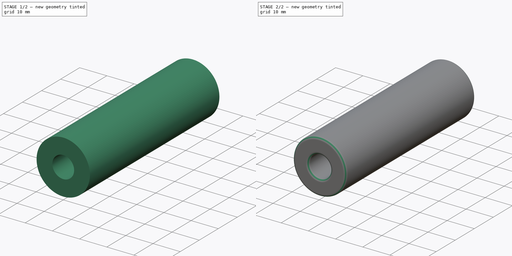
[diagram: build sequence overview — one tinted view per stage of 2, left to right]
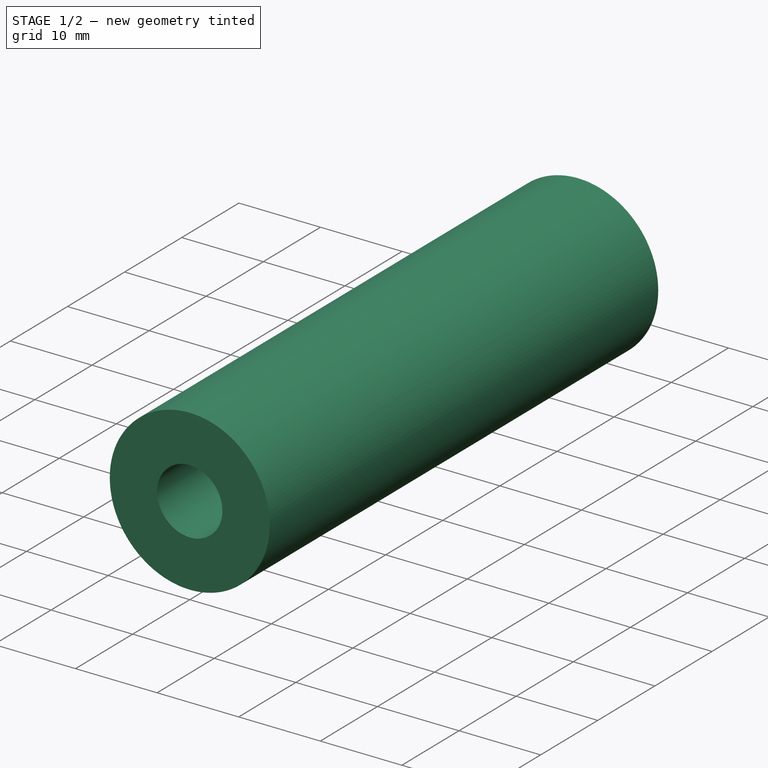
[diagram: stage 1 of 2 — iso view after this stage's code; geometry added in this stage tinted green]
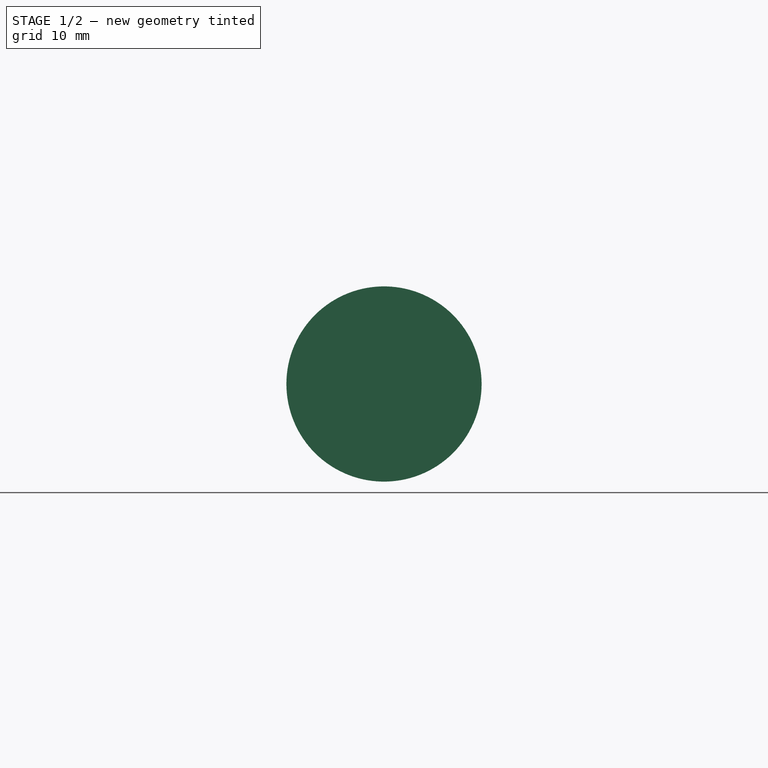
[diagram: stage 1 of 2 — front view after this stage's code; geometry added in this stage tinted green]
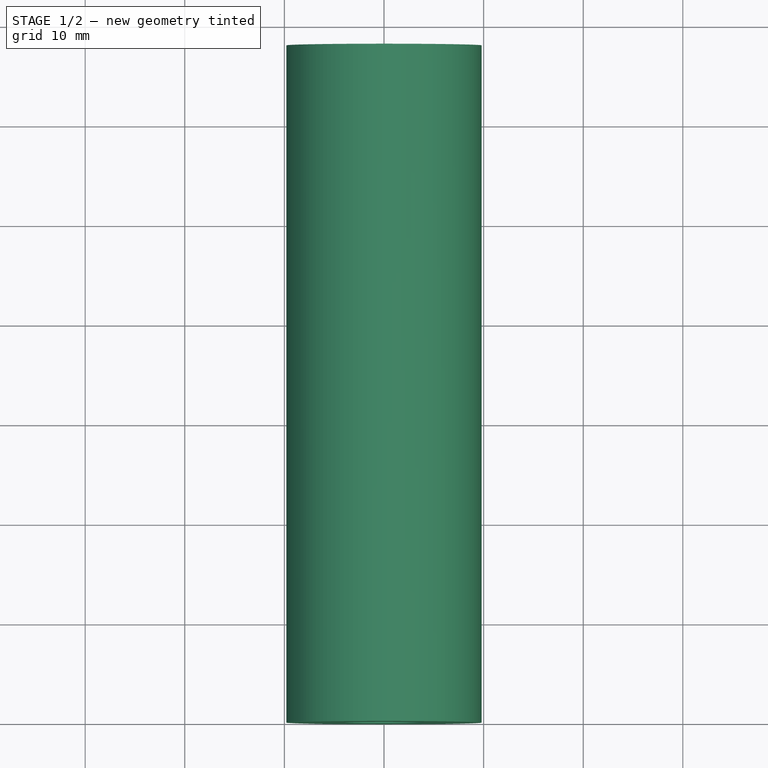
[diagram: stage 1 of 2 — top view after this stage's code; geometry added in this stage tinted green]
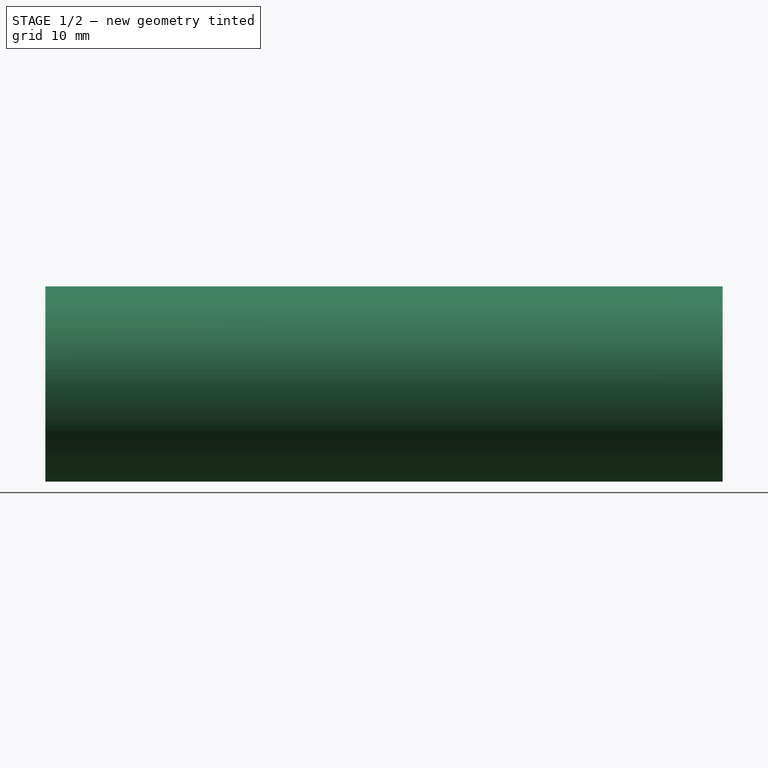
[diagram: stage 1 of 2 — right view after this stage's code; geometry added in this stage tinted green]
FCSTD DOCUMENT  (FreeCAD 0.16R6700 (Git))
Label: CoilHangerShaft
License: All rights reserved
LicenseURL: http://en.wikipedia.org/wiki/All_rights_reserved
objects: Sketcher::SketchObject×1, PartDesign::Revolution×1, PartDesign::Fillet×1
note: 4 computed .brp shape members not serialized (recipe doc carries the construction recipe); baked Part::Feature solids carry a one-line shape summary decoded from their .brp

FEATURE [Sketcher::SketchObject] Sketch
  sketch-geometry (8):
    g0: LineSegment StartX=4 StartY=68 StartZ=0 EndX=9.8 EndY=68 EndZ=0
    g1: LineSegment StartX=9.8 StartY=68 StartZ=0 EndX=9.8 EndY=0 EndZ=0
    g2: LineSegment StartX=9.8 StartY=0 StartZ=0 EndX=4 EndY=0 EndZ=0
    g3: LineSegment StartX=0 StartY=10 StartZ=0 EndX=0 EndY=58 EndZ=0
    g4: LineSegment StartX=0 StartY=10 StartZ=0 EndX=4 EndY=10 EndZ=0
    g5: LineSegment StartX=4 StartY=10 StartZ=0 EndX=4 EndY=0 EndZ=0
    g6: LineSegment StartX=0 StartY=58 StartZ=0 EndX=4 EndY=58 EndZ=0
    g7: LineSegment StartX=4 StartY=58 StartZ=0 EndX=4 EndY=68 EndZ=0
  constraints (24):
    c: Coincident(g0,g1)
    c: Coincident(g1,g2)
    c: Horizontal(g0)
    c: Horizontal(g2)
    c: Vertical(g1)
    c: Vertical(g3)
    c: PointOnObject(g1,g-1)
    c: DistanceY(g1,g1) = 68
    c: Horizontal(g4)
    c: Coincident(g4,g5)
    c: Vertical(g5)
    c: Horizontal(g6)
    c: Coincident(g6,g7)
    c: Vertical(g7)
    c: Coincident(g0,g7)
    c: Coincident(g3,g6)
    c: Coincident(g3,g4)
    c: Coincident(g2,g5)
    c: DistanceX(g4,g4) = 4
    c: PointOnObject(g3,g-2)
    c: DistanceX(g6,g6) = 4
    c: DistanceY(g5,g5) = 10
    c: DistanceY(g7,g7) = 10
    c: DistanceX(g-1,g1) = 9.8
FEATURE [PartDesign::Revolution] Revolution
  Angle = 360
  Axis = (0,1,0)
  Base = (0,0,0)
  ReferenceAxis = -> Sketch [V_Axis]
  Reversed = true
  Sketch = -> Sketch
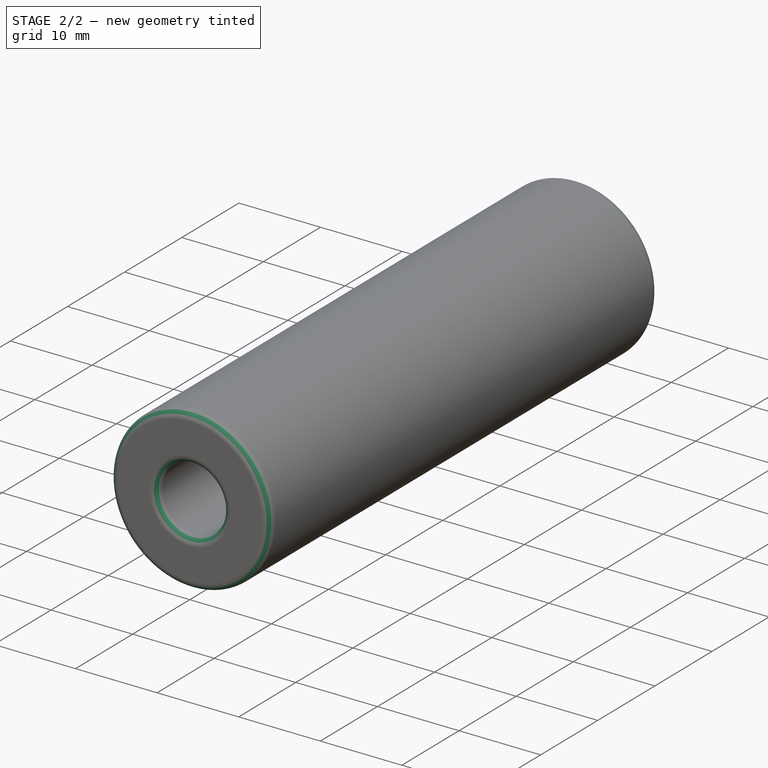
[diagram: stage 2 of 2 — iso view after this stage's code; geometry added in this stage tinted green]
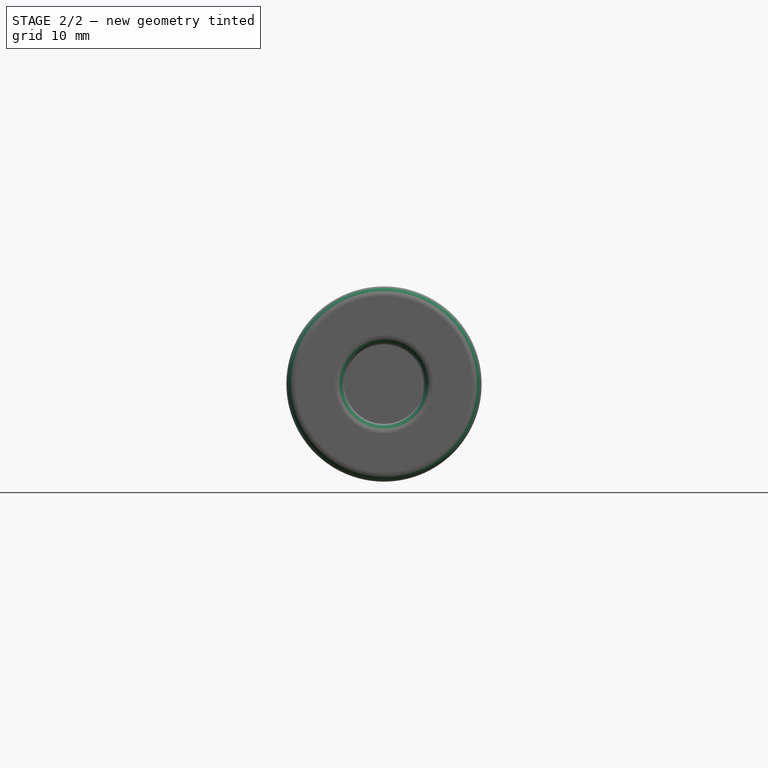
[diagram: stage 2 of 2 — front view after this stage's code; geometry added in this stage tinted green]
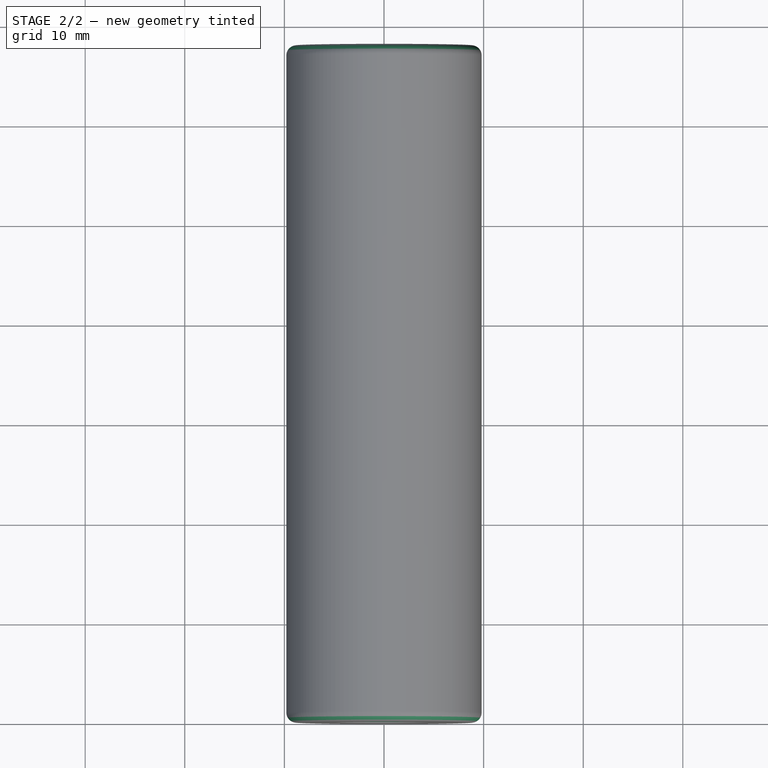
[diagram: stage 2 of 2 — top view after this stage's code; geometry added in this stage tinted green]
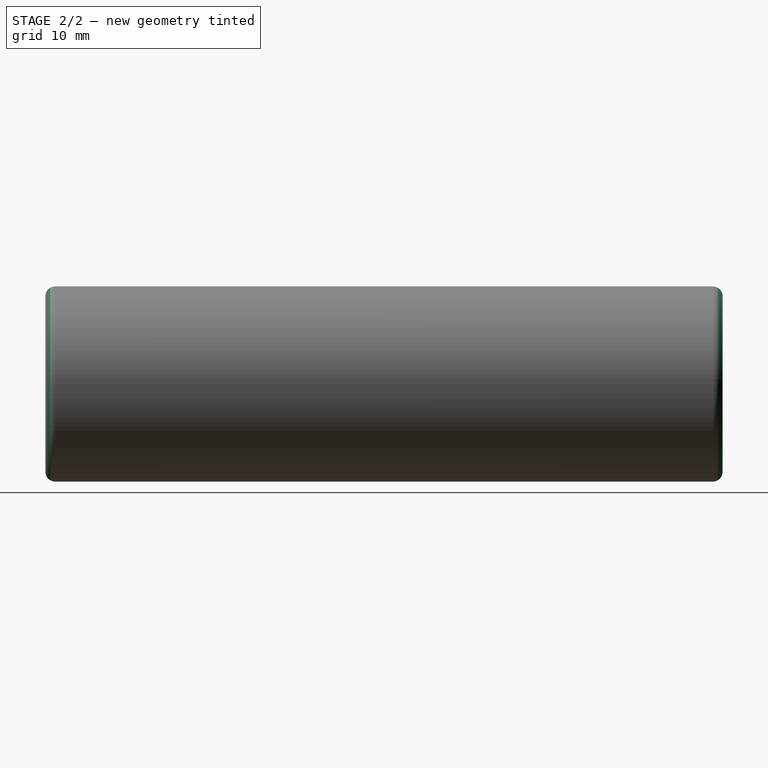
[diagram: stage 2 of 2 — right view after this stage's code; geometry added in this stage tinted green]
FEATURE [PartDesign::Fillet] Fillet
  Base = -> Revolution [Edge7,Edge5,Edge4,Edge2]
  Radius = 1
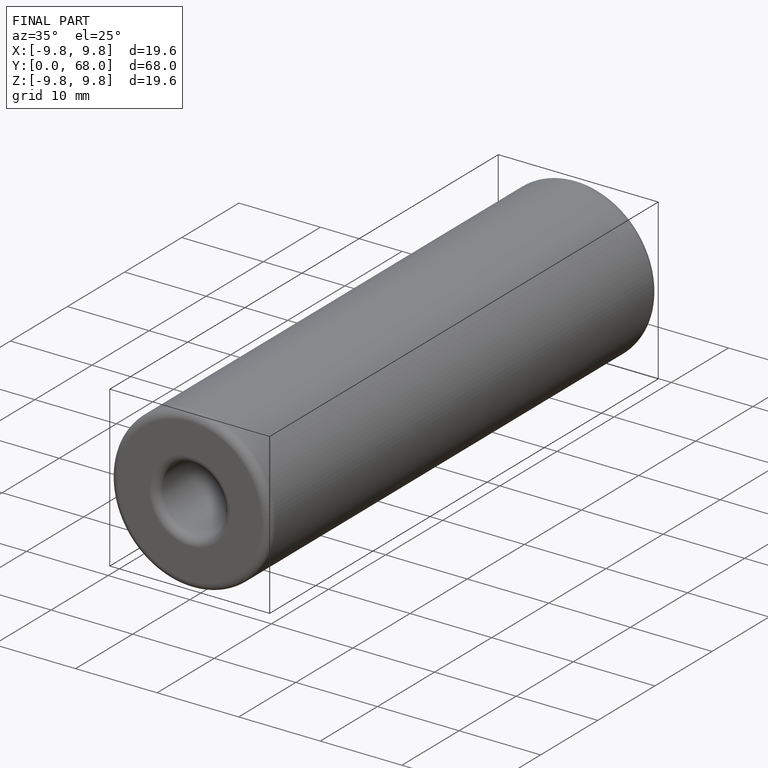
[diagram: finished part — iso view with bounding-box wireframe]
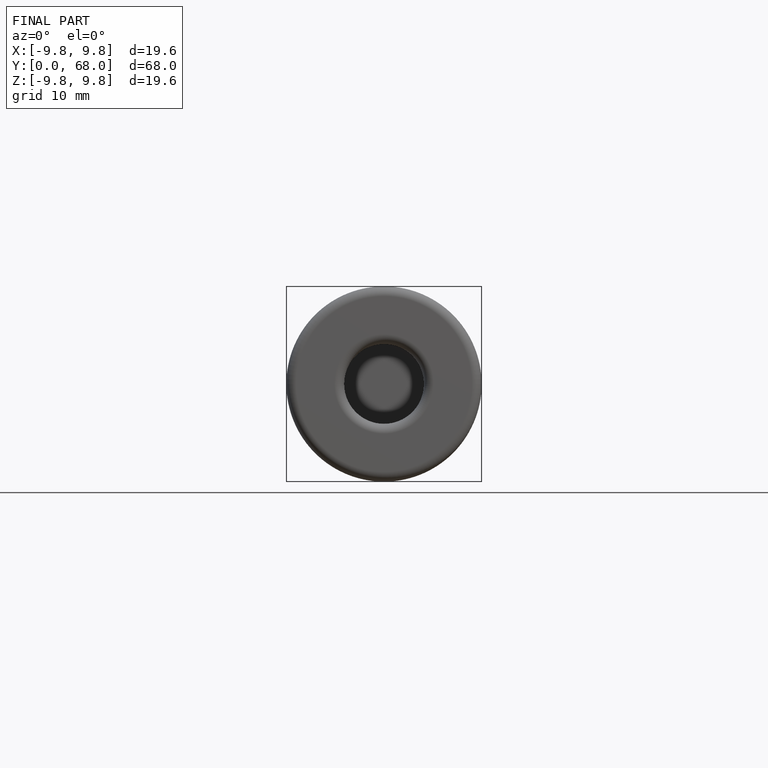
[diagram: finished part — front view with bounding-box wireframe]
